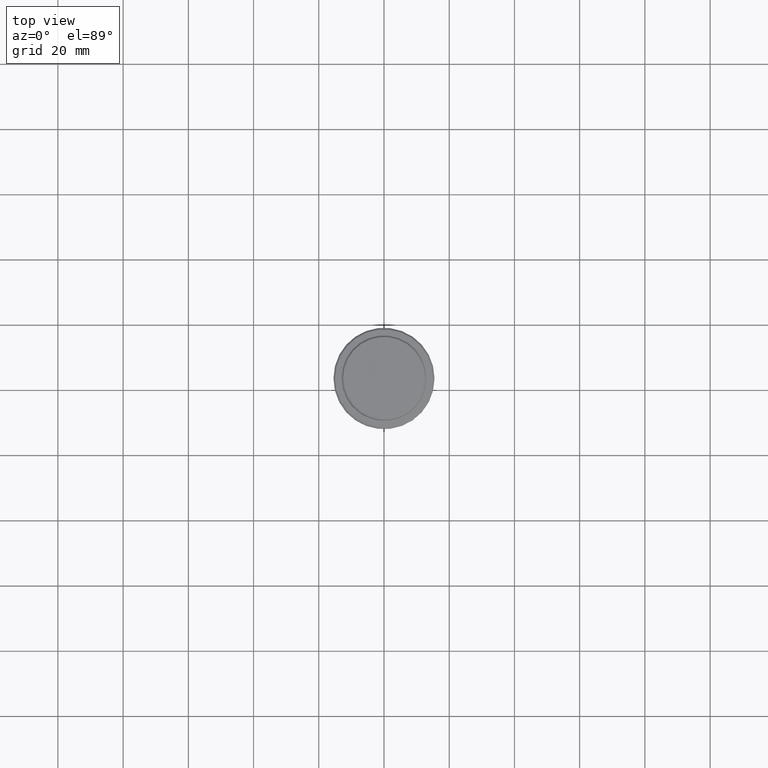
[diagram: clean part render]
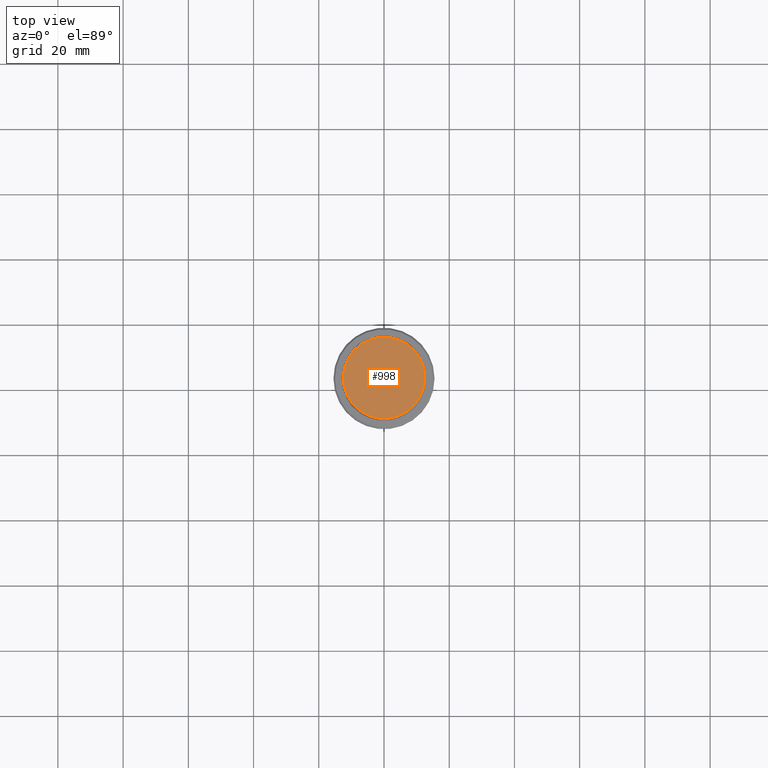
[diagram: same view with one face highlighted and labeled with its STEP entity id]
A machine part, top view. The second image highlights one B-rep face of the part: STEP entity #998.
In plain terms, the highlighted planar face has unit normal (0, -0, 1).
Its self-contained STEP definition (entity closure, byte-faithful):
#232 = VERTEX_POINT ( 'NONE', #921 ) ;
#308 = ORIENTED_EDGE ( 'NONE', *, *, #560, .T. ) ;
#392 = CIRCLE ( 'NONE', #934, 12.50000000000001243 ) ;
#440 = CIRCLE ( 'NONE', #527, 12.50000000000001243 ) ;
#527 = AXIS2_PLACEMENT_3D ( 'NONE', #1312, #1413, #533 ) ;
#533 = DIRECTION ( 'NONE',  ( 1.000000000000000000, 0.000000000000000000, 0.000000000000000000 ) ) ;
#560 = EDGE_CURVE ( 'NONE', #232, #1118, #392, .T. ) ;
#679 = CARTESIAN_POINT ( 'NONE',  ( 0.000000000000000000, 0.000000000000000000, 0.000000000000000000 ) ) ;
#860 = FACE_OUTER_BOUND ( 'NONE', #1246, .T. ) ;
#921 = CARTESIAN_POINT ( 'NONE',  ( 12.50000000000001243, 1.561424668912876097E-15, 0.000000000000000000 ) ) ;
#934 = AXIS2_PLACEMENT_3D ( 'NONE', #679, #1320, #1198 ) ;
#972 = EDGE_CURVE ( 'NONE', #1118, #232, #440, .T. ) ;
#998 = ADVANCED_FACE ( 'NONE', ( #860 ), #1408, .T. ) ;
#1057 = AXIS2_PLACEMENT_3D ( 'NONE', #1203, #1297, #1192 ) ;
#1115 = ORIENTED_EDGE ( 'NONE', *, *, #972, .T. ) ;
#1118 = VERTEX_POINT ( 'NONE', #1139 ) ;
#1139 = CARTESIAN_POINT ( 'NONE',  ( -12.50000000000001243, 0.000000000000000000, 0.000000000000000000 ) ) ;
#1192 = DIRECTION ( 'NONE',  ( 1.000000000000000000, 0.000000000000000000, 0.000000000000000000 ) ) ;
#1198 = DIRECTION ( 'NONE',  ( 1.000000000000000000, 0.000000000000000000, 0.000000000000000000 ) ) ;
#1203 = CARTESIAN_POINT ( 'NONE',  ( 0.000000000000000000, 0.000000000000000000, 0.000000000000000000 ) ) ;
#1246 = EDGE_LOOP ( 'NONE', ( #1115, #308 ) ) ;
#1297 = DIRECTION ( 'NONE',  ( 0.000000000000000000, -0.000000000000000000, 1.000000000000000000 ) ) ;
#1312 = CARTESIAN_POINT ( 'NONE',  ( 0.000000000000000000, 0.000000000000000000, 0.000000000000000000 ) ) ;
#1320 = DIRECTION ( 'NONE',  ( -0.000000000000000000, -0.000000000000000000, 1.000000000000000000 ) ) ;
#1408 = PLANE ( 'NONE',  #1057 ) ;
#1413 = DIRECTION ( 'NONE',  ( -0.000000000000000000, -0.000000000000000000, 1.000000000000000000 ) ) ;